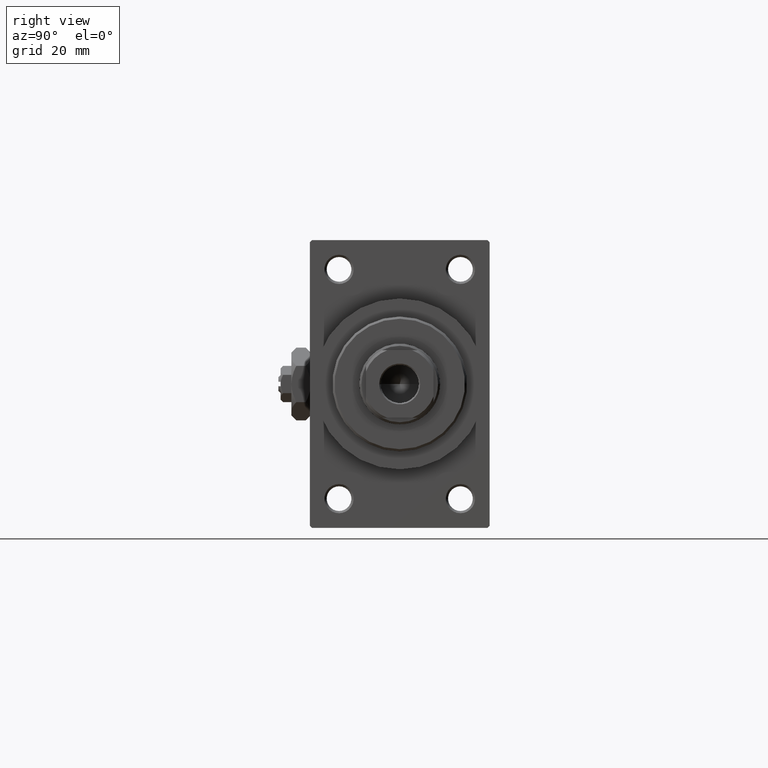
[diagram: clean part render]
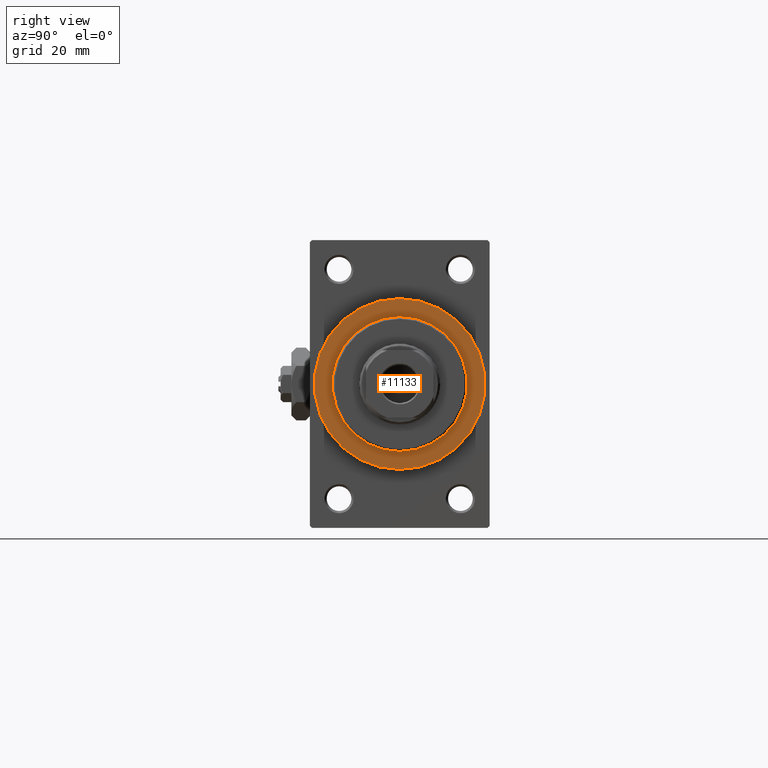
[diagram: same view with one face highlighted and labeled with its STEP entity id]
A machine part, right view. The second image highlights one B-rep face of the part: STEP entity #11133.
In plain terms, the highlighted planar face has unit normal (1, 0, 0).
Its self-contained STEP definition (entity closure, byte-faithful):
#694 = EDGE_CURVE ( 'NONE', #17038, #21272, #9151, .T. ) ;
#781 = CARTESIAN_POINT ( 'NONE',  ( 119.0000000000000142, 2.326828918379970970E-15, -19.00000000000000000 ) ) ;
#1186 = EDGE_CURVE ( 'NONE', #10090, #31986, #39056, .T. ) ;
#4747 = AXIS2_PLACEMENT_3D ( 'NONE', #9058, #24810, #13714 ) ;
#7997 = DIRECTION ( 'NONE',  ( 0.000000000000000000, 0.000000000000000000, -1.000000000000000000 ) ) ;
#8130 = CARTESIAN_POINT ( 'NONE',  ( 119.0000000000000142, 0.000000000000000000, -15.00000000000000000 ) ) ;
#8933 = CARTESIAN_POINT ( 'NONE',  ( 119.0000000000000142, 1.836970198721029589E-15, 15.00000000000000000 ) ) ;
#9058 = CARTESIAN_POINT ( 'NONE',  ( 119.0000000000000142, 0.000000000000000000, 0.000000000000000000 ) ) ;
#9151 = CIRCLE ( 'NONE', #35887, 19.00000000000000000 ) ;
#10090 = VERTEX_POINT ( 'NONE', #8933 ) ;
#11133 = ADVANCED_FACE ( 'NONE', ( #44853, #14319 ), #26154, .T. ) ;
#13627 = EDGE_CURVE ( 'NONE', #21272, #17038, #19684, .T. ) ;
#13714 = DIRECTION ( 'NONE',  ( 0.000000000000000000, 0.000000000000000000, -1.000000000000000000 ) ) ;
#13884 = ORIENTED_EDGE ( 'NONE', *, *, #1186, .F. ) ;
#14319 = FACE_OUTER_BOUND ( 'NONE', #19303, .T. ) ;
#14910 = EDGE_CURVE ( 'NONE', #31986, #10090, #15818, .T. ) ;
#15818 = CIRCLE ( 'NONE', #40177, 15.00000000000000000 ) ;
#17038 = VERTEX_POINT ( 'NONE', #25735 ) ;
#18150 = ORIENTED_EDGE ( 'NONE', *, *, #694, .T. ) ;
#19303 = EDGE_LOOP ( 'NONE', ( #18150, #36953 ) ) ;
#19390 = AXIS2_PLACEMENT_3D ( 'NONE', #32721, #40365, #29515 ) ;
#19619 = AXIS2_PLACEMENT_3D ( 'NONE', #44347, #26397, #36707 ) ;
#19684 = CIRCLE ( 'NONE', #4747, 19.00000000000000000 ) ;
#21272 = VERTEX_POINT ( 'NONE', #781 ) ;
#23748 = DIRECTION ( 'NONE',  ( 1.000000000000000000, 0.000000000000000000, 0.000000000000000000 ) ) ;
#24810 = DIRECTION ( 'NONE',  ( 1.000000000000000000, 0.000000000000000000, 0.000000000000000000 ) ) ;
#25735 = CARTESIAN_POINT ( 'NONE',  ( 119.0000000000000142, 0.000000000000000000, 19.00000000000000000 ) ) ;
#26154 = PLANE ( 'NONE',  #19619 ) ;
#26397 = DIRECTION ( 'NONE',  ( 1.000000000000000000, 0.000000000000000000, 0.000000000000000000 ) ) ;
#29515 = DIRECTION ( 'NONE',  ( 0.000000000000000000, 0.000000000000000000, -1.000000000000000000 ) ) ;
#29706 = DIRECTION ( 'NONE',  ( 0.000000000000000000, 0.000000000000000000, -1.000000000000000000 ) ) ;
#31986 = VERTEX_POINT ( 'NONE', #8130 ) ;
#32721 = CARTESIAN_POINT ( 'NONE',  ( 119.0000000000000142, 0.000000000000000000, 0.000000000000000000 ) ) ;
#35887 = AXIS2_PLACEMENT_3D ( 'NONE', #46389, #23748, #7997 ) ;
#36707 = DIRECTION ( 'NONE',  ( 0.000000000000000000, 0.000000000000000000, -1.000000000000000000 ) ) ;
#36953 = ORIENTED_EDGE ( 'NONE', *, *, #13627, .T. ) ;
#39056 = CIRCLE ( 'NONE', #19390, 15.00000000000000000 ) ;
#39274 = ORIENTED_EDGE ( 'NONE', *, *, #14910, .F. ) ;
#40177 = AXIS2_PLACEMENT_3D ( 'NONE', #41282, #44984, #29706 ) ;
#40365 = DIRECTION ( 'NONE',  ( 1.000000000000000000, 0.000000000000000000, 0.000000000000000000 ) ) ;
#41263 = EDGE_LOOP ( 'NONE', ( #39274, #13884 ) ) ;
#41282 = CARTESIAN_POINT ( 'NONE',  ( 119.0000000000000142, 0.000000000000000000, 0.000000000000000000 ) ) ;
#44347 = CARTESIAN_POINT ( 'NONE',  ( 119.0000000000000142, 0.000000000000000000, 0.000000000000000000 ) ) ;
#44853 = FACE_BOUND ( 'NONE', #41263, .T. ) ;
#44984 = DIRECTION ( 'NONE',  ( 1.000000000000000000, 0.000000000000000000, 0.000000000000000000 ) ) ;
#46389 = CARTESIAN_POINT ( 'NONE',  ( 119.0000000000000142, 0.000000000000000000, 0.000000000000000000 ) ) ;